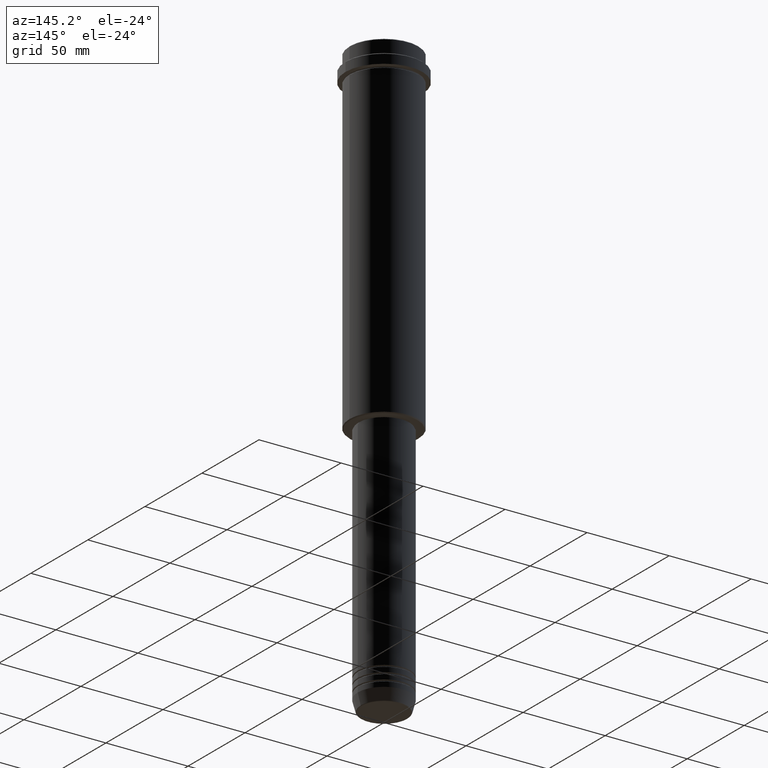
[diagram: clean part render]
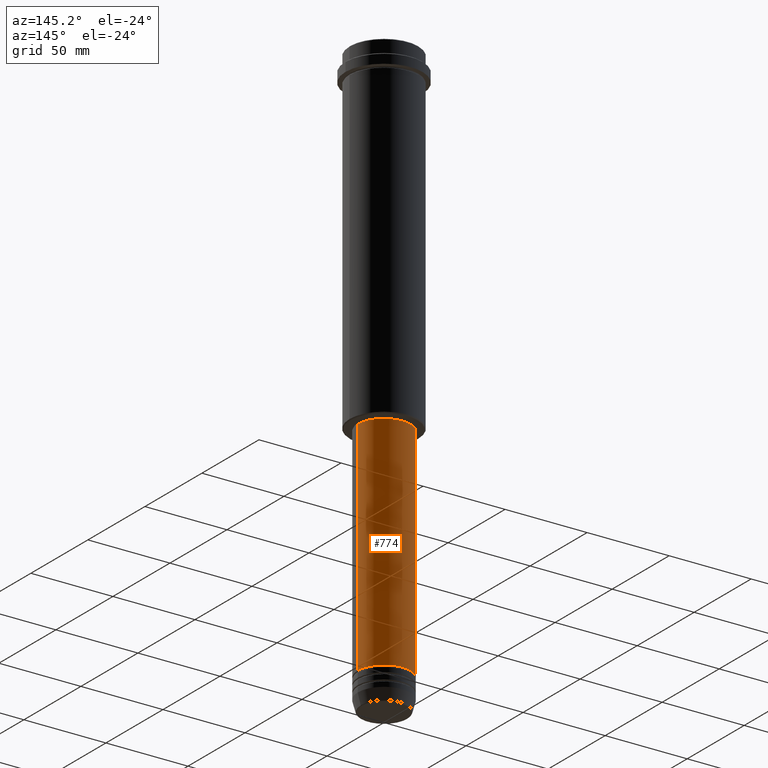
[diagram: same view with one face highlighted and labeled with its STEP entity id]
A machine part, auxiliary view. The second image highlights one B-rep face of the part: STEP entity #774.
In plain terms, the highlighted cylindrical surface (edge-blend (fillet) strip) has radius 16 mm, axis along (-0, -0, 1).
Its self-contained STEP definition (entity closure, byte-faithful):
#45 = DIRECTION ( 'NONE',  ( -0.000000000000000000, -0.000000000000000000, 1.000000000000000000 ) ) ;
#72 = DIRECTION ( 'NONE',  ( -0.000000000000000000, -0.000000000000000000, 1.000000000000000000 ) ) ;
#99 = VECTOR ( 'NONE', #101, 1000.000000000000000 ) ;
#101 = DIRECTION ( 'NONE',  ( -0.000000000000000000, -0.000000000000000000, 1.000000000000000000 ) ) ;
#109 = ORIENTED_EDGE ( 'NONE', *, *, #526, .F. ) ;
#118 = VERTEX_POINT ( 'NONE', #585 ) ;
#169 = CARTESIAN_POINT ( 'NONE',  ( -16.00000000000000355, 1.959434878635765526E-15, -205.9999999999999716 ) ) ;
#262 = CARTESIAN_POINT ( 'NONE',  ( 16.00000000000000000, 0.000000000000000000, 0.000000000000000000 ) ) ;
#275 = LINE ( 'NONE', #262, #1394 ) ;
#284 = DIRECTION ( 'NONE',  ( 1.000000000000000000, 0.000000000000000000, 0.000000000000000000 ) ) ;
#346 = AXIS2_PLACEMENT_3D ( 'NONE', #366, #909, #1113 ) ;
#366 = CARTESIAN_POINT ( 'NONE',  ( 0.000000000000000000, 0.000000000000000000, -340.9999999999998863 ) ) ;
#385 = VERTEX_POINT ( 'NONE', #912 ) ;
#401 = CARTESIAN_POINT ( 'NONE',  ( -16.00000000000000000, 1.959434878635765131E-15, 0.000000000000000000 ) ) ;
#411 = ORIENTED_EDGE ( 'NONE', *, *, #845, .T. ) ;
#418 = CARTESIAN_POINT ( 'NONE',  ( 0.000000000000000000, 0.000000000000000000, -205.9999999999999716 ) ) ;
#437 = DIRECTION ( 'NONE',  ( -0.000000000000000000, -0.000000000000000000, 1.000000000000000000 ) ) ;
#444 = EDGE_CURVE ( 'NONE', #385, #959, #275, .T. ) ;
#466 = VERTEX_POINT ( 'NONE', #169 ) ;
#526 = EDGE_CURVE ( 'NONE', #959, #466, #687, .T. ) ;
#583 = EDGE_CURVE ( 'NONE', #118, #466, #1076, .T. ) ;
#585 = CARTESIAN_POINT ( 'NONE',  ( -16.00000000000000000, 1.959434878635765131E-15, -340.9999999999998863 ) ) ;
#655 = ORIENTED_EDGE ( 'NONE', *, *, #444, .F. ) ;
#687 = CIRCLE ( 'NONE', #994, 16.00000000000000355 ) ;
#696 = ORIENTED_EDGE ( 'NONE', *, *, #583, .T. ) ;
#774 = ADVANCED_FACE ( 'NONE', ( #988 ), #1403, .T. ) ;
#845 = EDGE_CURVE ( 'NONE', #385, #118, #1039, .T. ) ;
#881 = DIRECTION ( 'NONE',  ( 1.000000000000000000, 0.000000000000000000, 0.000000000000000000 ) ) ;
#909 = DIRECTION ( 'NONE',  ( -0.000000000000000000, -0.000000000000000000, 1.000000000000000000 ) ) ;
#912 = CARTESIAN_POINT ( 'NONE',  ( 16.00000000000000000, 0.000000000000000000, -340.9999999999998863 ) ) ;
#959 = VERTEX_POINT ( 'NONE', #1088 ) ;
#966 = EDGE_LOOP ( 'NONE', ( #411, #696, #109, #655 ) ) ;
#988 = FACE_OUTER_BOUND ( 'NONE', #966, .T. ) ;
#994 = AXIS2_PLACEMENT_3D ( 'NONE', #418, #72, #284 ) ;
#1039 = CIRCLE ( 'NONE', #346, 16.00000000000000000 ) ;
#1076 = LINE ( 'NONE', #401, #99 ) ;
#1088 = CARTESIAN_POINT ( 'NONE',  ( 16.00000000000000355, 0.000000000000000000, -205.9999999999999716 ) ) ;
#1113 = DIRECTION ( 'NONE',  ( 1.000000000000000000, 0.000000000000000000, 0.000000000000000000 ) ) ;
#1219 = AXIS2_PLACEMENT_3D ( 'NONE', #1417, #437, #881 ) ;
#1394 = VECTOR ( 'NONE', #45, 1000.000000000000000 ) ;
#1403 = CYLINDRICAL_SURFACE ( 'NONE', #1219, 16.00000000000000000 ) ;
#1417 = CARTESIAN_POINT ( 'NONE',  ( 0.000000000000000000, 0.000000000000000000, 0.000000000000000000 ) ) ;